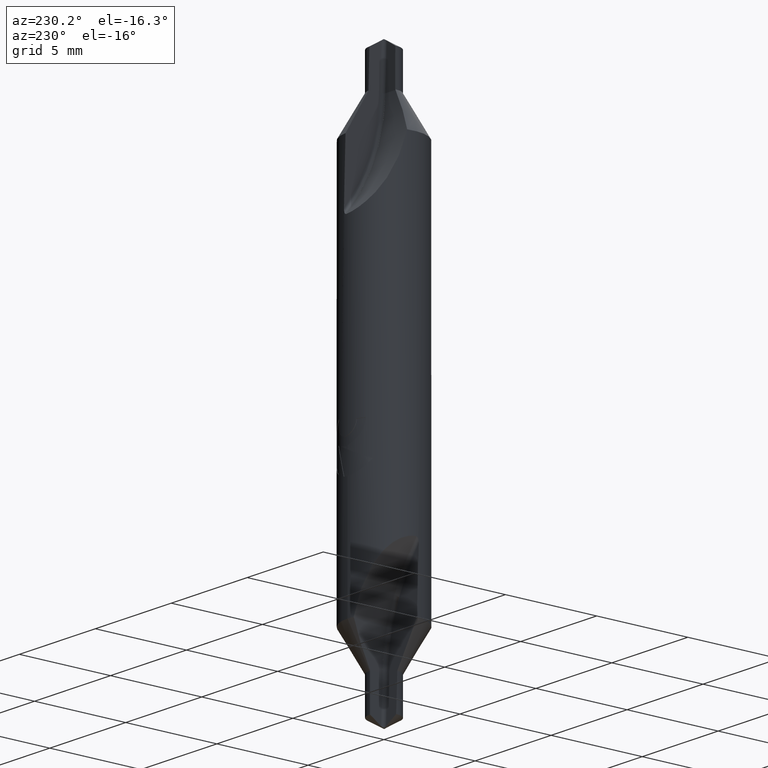
[diagram: clean part render]
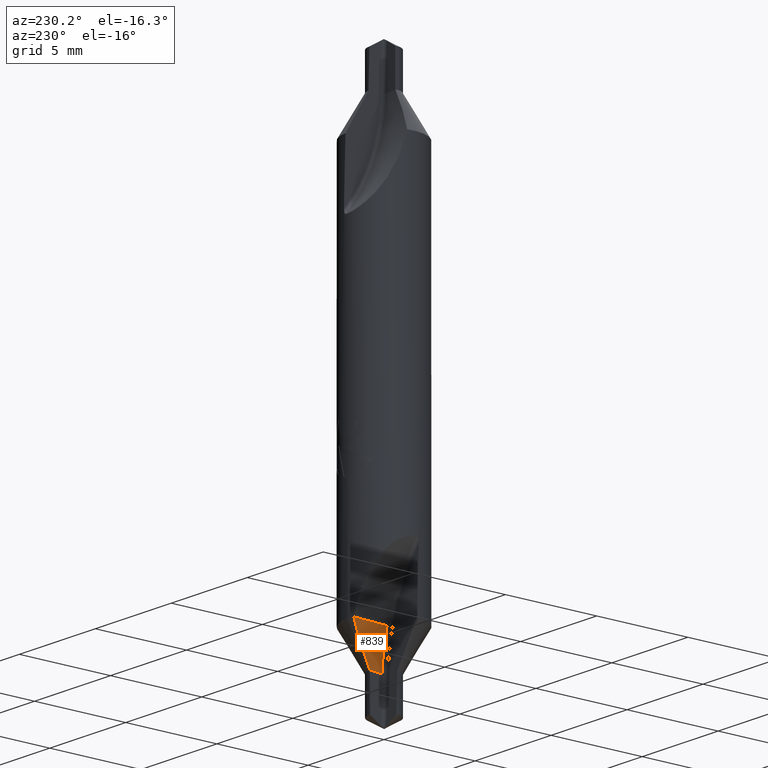
[diagram: same view with one face highlighted and labeled with its STEP entity id]
A machine part, auxiliary view. The second image highlights one B-rep face of the part: STEP entity #839.
In plain terms, the highlighted conical surface has half-angle 4 deg.
Its self-contained STEP definition (entity closure, byte-faithful):
#435=EDGE_CURVE('',#1077,#987,#1186,.T.);
#461=VERTEX_POINT('',#1216);
#655=EDGE_CURVE('',#923,#461,#1429,.T.);
#837=EDGE_CURVE('',#987,#461,#1626,.T.);
#839=ADVANCED_FACE('',(#1628),#1629,.F.);
#911=EDGE_CURVE('',#1077,#923,#1708,.T.);
#923=VERTEX_POINT('',#1720);
#987=VERTEX_POINT('',#1791);
#1077=VERTEX_POINT('',#1889);
#1186=LINE('',#2020,#2021);
#1216=CARTESIAN_POINT('',(-0.244047967375369,0.0316600751203079,-25.8215390347779));
#1429=(B_SPLINE_CURVE(2,(#2708,#2709,#2710),.UNSPECIFIED.,.F.,.F.)B_SPLINE_CURVE_WITH_KNOTS((3,3),(0.0,1.97231306708778),.UNSPECIFIED.)RATIONAL_B_SPLINE_CURVE((1.0,1.00002372704699,1.0))BOUNDED_CURVE()REPRESENTATION_ITEM('')GEOMETRIC_REPRESENTATION_ITEM()CURVE());
#1626=CIRCLE('',#3261,8.95653218794182);
#1628=FACE_OUTER_BOUND('',#3263,.T.);
#1629=CONICAL_SURFACE('',#3264,8.64935206272734,0.0698131700797732);
#1708=B_SPLINE_CURVE_WITH_KNOTS('',3,(#3459,#3460,#3461,#3462,#3463,#3464,#3465,#3466,#3467,#3468,#3469,#3470,#3471,#3472,#3473,#3474,#3475,#3476,#3477,#3478,#3479,#3480,#3481,#3482,#3483,#3484,#3485,#3486,#3487,#3488,#3489,#3490,#3491,#3492,#3493,#3494,#3495,#3496,#3497,#3498),.UNSPECIFIED.,.F.,.F.,(4,2,2,2,2,2,2,2,2,2,2,2,2,2,2,2,2,2,2,4),(0.0,0.442739365843016,0.897681719837891,1.35262407383277,1.59564261615367,1.68095216638312,1.72360694149785,1.74493432905521,1.76626171661257,1.78848667273049,1.8107116288484,1.85516154108423,1.94406136555589,2.19903927164057,2.67096581430806,3.14289235697555,4.28040434019203,5.41791632340852,6.555428306625,7.69294028984149),.UNSPECIFIED.);
#1720=CARTESIAN_POINT('',(-0.367014517667028,1.9660367074157,-25.8215390347779));
#1791=CARTESIAN_POINT('',(-0.000389752058184561,0.104073763748376,-27.8951957634815));
#1889=CARTESIAN_POINT('',(-0.0501732227595487,0.815576870686969,-27.8703495274914));
#2020=CARTESIAN_POINT('',(-0.307569877322535,4.49427819176907,-27.7418864466289));
#2021=VECTOR('',#4099,1.0);
#2708=CARTESIAN_POINT('',(-0.369174994334971,1.99999999986518,-25.8215390309173));
#2709=CARTESIAN_POINT('',(-0.307021952575009,1.0229480943459,-25.8215390309174));
#2710=CARTESIAN_POINT('',(-0.244047968238761,0.0316600749064184,-25.8215390309174));
#3261=AXIS2_PLACEMENT_3D('',#4568,#4569,#4570);
#3263=EDGE_LOOP('',(#4572,#4573,#4574,#4575));
#3264=AXIS2_PLACEMENT_3D('',#4576,#4577,#4578);
#3459=CARTESIAN_POINT('',(0.0678782278010615,-0.979798792639803,-27.5845117911602));
#3460=CARTESIAN_POINT('',(0.0680460016394975,-0.905867712386169,-27.7122379092094));
#3461=CARTESIAN_POINT('',(0.0646592023932176,-0.817323393409192,-27.8655719776303));
#3462=CARTESIAN_POINT('',(0.0528599971525631,-0.668175768479093,-28.1247103689564));
#3463=CARTESIAN_POINT('',(0.0431208903005457,-0.585349181015674,-28.2691500280113));
#3464=CARTESIAN_POINT('',(0.0160140323133023,-0.420142247521409,-28.5575597270676));
#3465=CARTESIAN_POINT('',(-0.00136194642319589,-0.338033570165791,-28.7016845263193));
#3466=CARTESIAN_POINT('',(-0.0300587294595779,-0.220695973517856,-28.9005213830336));
#3467=CARTESIAN_POINT('',(-0.0431495380992127,-0.171607227974679,-28.9833960335369));
#3468=CARTESIAN_POINT('',(-0.0589811420039136,-0.108984926896601,-29.0717448409156));
#3469=CARTESIAN_POINT('',(-0.0635270488841035,-0.0906794276954694,-29.0960383213602));
#3470=CARTESIAN_POINT('',(-0.0697301972801725,-0.0610972029256182,-29.1257078745473));
#3471=CARTESIAN_POINT('',(-0.0716707355597071,-0.0509851819824148,-29.1343669322929));
#3472=CARTESIAN_POINT('',(-0.0742354454425445,-0.0346023159274514,-29.1440657529594));
#3473=CARTESIAN_POINT('',(-0.0750292919060461,-0.0289488350924754,-29.1467320077617));
#3474=CARTESIAN_POINT('',(-0.0764514283581638,-0.0168760988836465,-29.1504343576381));
#3475=CARTESIAN_POINT('',(-0.0770799154405685,-0.0104578063477003,-29.1514735159577));
#3476=CARTESIAN_POINT('',(-0.0780826909303616,0.00401052332702765,-29.1508268545081));
#3477=CARTESIAN_POINT('',(-0.0783442319752189,0.0106363895810677,-29.1491033953375));
#3478=CARTESIAN_POINT('',(-0.0785993798520244,0.0231028870895611,-29.1441331043044));
#3479=CARTESIAN_POINT('',(-0.0785897477933624,0.0289356882866752,-29.140866490099));
#3480=CARTESIAN_POINT('',(-0.0783083104075337,0.0458774215853586,-29.1294817045409));
#3481=CARTESIAN_POINT('',(-0.0777901186271954,0.0563764866002047,-29.1198502500536));
#3482=CARTESIAN_POINT('',(-0.0757878552955254,0.0871878455118273,-29.0875776238069));
#3483=CARTESIAN_POINT('',(-0.0738922018781451,0.106380740069652,-29.0619867336623));
#3484=CARTESIAN_POINT('',(-0.0671057856370232,0.172691675401246,-28.9687349042117));
#3485=CARTESIAN_POINT('',(-0.0611124054061785,0.225466109315569,-28.8816651865537));
#3486=CARTESIAN_POINT('',(-0.0494455327415647,0.350300105376143,-28.6743240036359));
#3487=CARTESIAN_POINT('',(-0.0439402941988303,0.437156461539882,-28.5247958242508));
#3488=CARTESIAN_POINT('',(-0.0405744659164535,0.610743731656422,-28.2255756209627));
#3489=CARTESIAN_POINT('',(-0.0426728270122759,0.697230415808922,-28.0757424411323));
#3490=CARTESIAN_POINT('',(-0.0590593326714024,0.964969184348483,-27.6111375579994));
#3491=CARTESIAN_POINT('',(-0.0887514626908262,1.16211550803444,-27.2676274019031));
#3492=CARTESIAN_POINT('',(-0.190680110052124,1.55735356545549,-26.5685950598044));
#3493=CARTESIAN_POINT('',(-0.262906799734019,1.75534972468167,-26.2130174066596));
#3494=CARTESIAN_POINT('',(-0.450679304913606,2.13571248773352,-25.5063509548872));
#3495=CARTESIAN_POINT('',(-0.566278987241284,2.3181055905367,-25.1551005444804));
#3496=CARTESIAN_POINT('',(-0.836271752156857,2.65148314989039,-24.4723626316007));
#3497=CARTESIAN_POINT('',(-0.990699930737742,2.80239745625255,-24.1408547564603));
#3498=CARTESIAN_POINT('',(-1.15923002684693,2.9309398048534,-23.8264587298641));
#4099=DIRECTION('',(0.0697564737441253,-0.996956361193685,-0.034814483282576));
#4568=CARTESIAN_POINT('',(-8.95692194,0.104073763748374,-27.8951957634815));
#4569=DIRECTION('',(0.0,-0.999390827019096,-0.0348994967025007));
#4570=DIRECTION('',(0.0,0.0348994967025007,-0.999390827019096));
#4572=ORIENTED_EDGE('',*,*,#911,.F.);
#4573=ORIENTED_EDGE('',*,*,#435,.T.);
#4574=ORIENTED_EDGE('',*,*,#837,.T.);
#4575=ORIENTED_EDGE('',*,*,#655,.F.);
#4576=CARTESIAN_POINT('',(-8.95692194,4.49427819177257,-27.7418864466288));
#4577=DIRECTION('',(0.0,-0.999390827019096,-0.0348994967025007));
#4578=DIRECTION('',(0.0,0.0348994967025007,-0.999390827019096));